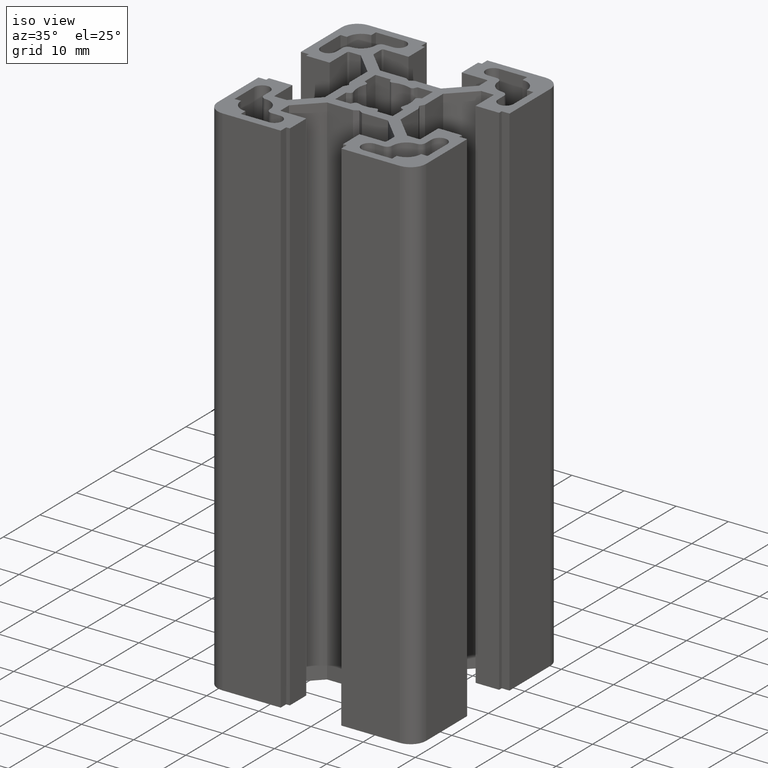
[diagram: clean part render]
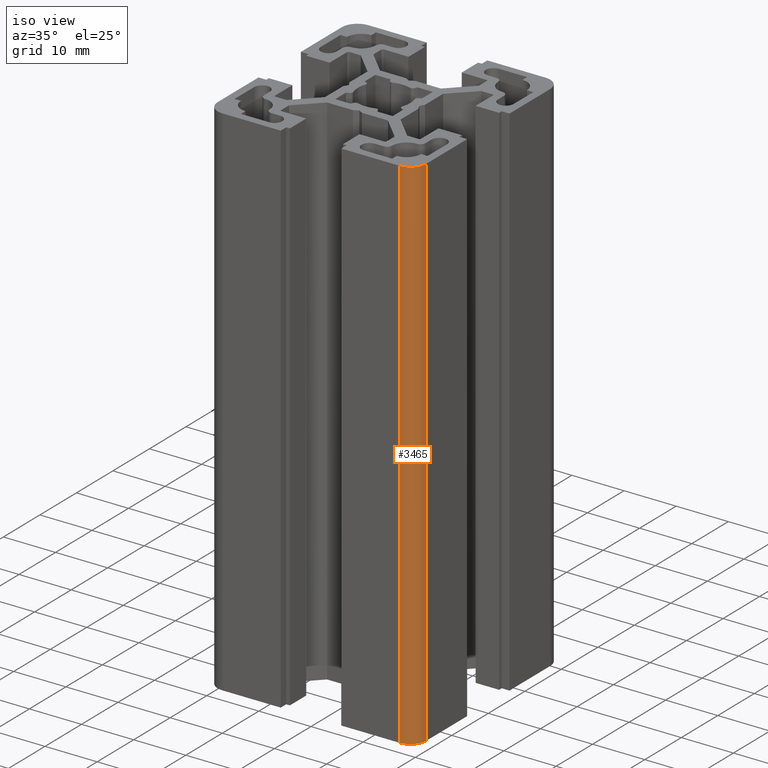
[diagram: same view with one face highlighted and labeled with its STEP entity id]
A machine part, iso view. The second image highlights one B-rep face of the part: STEP entity #3465.
In plain terms, the highlighted cylindrical surface (edge-blend (fillet) strip) has radius 3 mm, axis along (-0, -0, -1).
Its self-contained STEP definition (entity closure, byte-faithful):
#871 = DIRECTION ( 'NONE',  ( -0.0000000000000000000, -0.0000000000000000000, -1.000000000000000000 ) ) ;
#872 = CARTESIAN_POINT ( 'NONE',  ( 17.00000000000001100, -16.99999999999998900, 100.0000000000000000 ) ) ;
#873 = DIRECTION ( 'NONE',  ( -0.0000000000000000000, -0.0000000000000000000, -1.000000000000000000 ) ) ;
#874 = VECTOR ( 'NONE', #873, 1000.000000000000000 ) ;
#875 = CARTESIAN_POINT ( 'NONE',  ( 20.00000000000001100, -16.99999999999998900, 100.0000000000000000 ) ) ;
#876 = LINE ( 'NONE', #875, #874 ) ;
#877 = FACE_OUTER_BOUND ( 'NONE', #3427, .T. ) ;
#881 = AXIS2_PLACEMENT_3D ( 'NONE', #872, #871, #934 ) ;
#885 = CYLINDRICAL_SURFACE ( 'NONE', #881, 2.999999999999999100 ) ;
#909 = DIRECTION ( 'NONE',  ( -0.0000000000000000000, -0.0000000000000000000, -1.000000000000000000 ) ) ;
#910 = VECTOR ( 'NONE', #909, 1000.000000000000000 ) ;
#911 = CARTESIAN_POINT ( 'NONE',  ( 17.00000000000001100, -19.99999999999998900, 100.0000000000000000 ) ) ;
#912 = LINE ( 'NONE', #911, #910 ) ;
#934 = DIRECTION ( 'NONE',  ( -1.000000000000000000, 0.0000000000000000000, 0.0000000000000000000 ) ) ;
#1821 = DIRECTION ( 'NONE',  ( 1.000000000000000000, 0.0000000000000000000, 0.0000000000000000000 ) ) ;
#1822 = DIRECTION ( 'NONE',  ( 0.0000000000000000000, 0.0000000000000000000, 1.000000000000000000 ) ) ;
#1823 = CARTESIAN_POINT ( 'NONE',  ( 17.00000000000001100, -16.99999999999998900, 100.0000000000000000 ) ) ;
#1830 = AXIS2_PLACEMENT_3D ( 'NONE', #1823, #1822, #1821 ) ;
#1834 = CARTESIAN_POINT ( 'NONE',  ( 20.00000000000001100, -16.99999999999998900, 100.0000000000000000 ) ) ;
#1849 = CIRCLE ( 'NONE', #1830, 2.999999999999999100 ) ;
#1872 = CARTESIAN_POINT ( 'NONE',  ( 17.00000000000001100, -19.99999999999998900, 100.0000000000000000 ) ) ;
#2505 = VERTEX_POINT ( 'NONE', #4918 ) ;
#2528 = VERTEX_POINT ( 'NONE', #4983 ) ;
#2568 = EDGE_CURVE ( 'NONE', #2528, #2505, #5031, .T. ) ;
#3427 = EDGE_LOOP ( 'NONE', ( #3466, #3464, #3469, #3468 ) ) ;
#3463 = EDGE_CURVE ( 'NONE', #5582, #2505, #876, .T. ) ;
#3464 = ORIENTED_EDGE ( 'NONE', *, *, #3463, .F. ) ;
#3465 = ADVANCED_FACE ( 'NONE', ( #877 ), #885, .T. ) ;
#3466 = ORIENTED_EDGE ( 'NONE', *, *, #2568, .T. ) ;
#3468 = ORIENTED_EDGE ( 'NONE', *, *, #3480, .T. ) ;
#3469 = ORIENTED_EDGE ( 'NONE', *, *, #5592, .F. ) ;
#3480 = EDGE_CURVE ( 'NONE', #5626, #2528, #912, .T. ) ;
#4918 = CARTESIAN_POINT ( 'NONE',  ( 20.00000000000001100, -16.99999999999998900, 0.0000000000000000000 ) ) ;
#4983 = CARTESIAN_POINT ( 'NONE',  ( 17.00000000000001100, -19.99999999999998900, 0.0000000000000000000 ) ) ;
#5022 = DIRECTION ( 'NONE',  ( 1.000000000000000000, 0.0000000000000000000, 0.0000000000000000000 ) ) ;
#5023 = DIRECTION ( 'NONE',  ( 0.0000000000000000000, 0.0000000000000000000, 1.000000000000000000 ) ) ;
#5031 = CIRCLE ( 'NONE', #5037, 2.999999999999999100 ) ;
#5037 = AXIS2_PLACEMENT_3D ( 'NONE', #5042, #5023, #5022 ) ;
#5042 = CARTESIAN_POINT ( 'NONE',  ( 17.00000000000001100, -16.99999999999998900, 0.0000000000000000000 ) ) ;
#5582 = VERTEX_POINT ( 'NONE', #1834 ) ;
#5592 = EDGE_CURVE ( 'NONE', #5626, #5582, #1849, .T. ) ;
#5626 = VERTEX_POINT ( 'NONE', #1872 ) ;